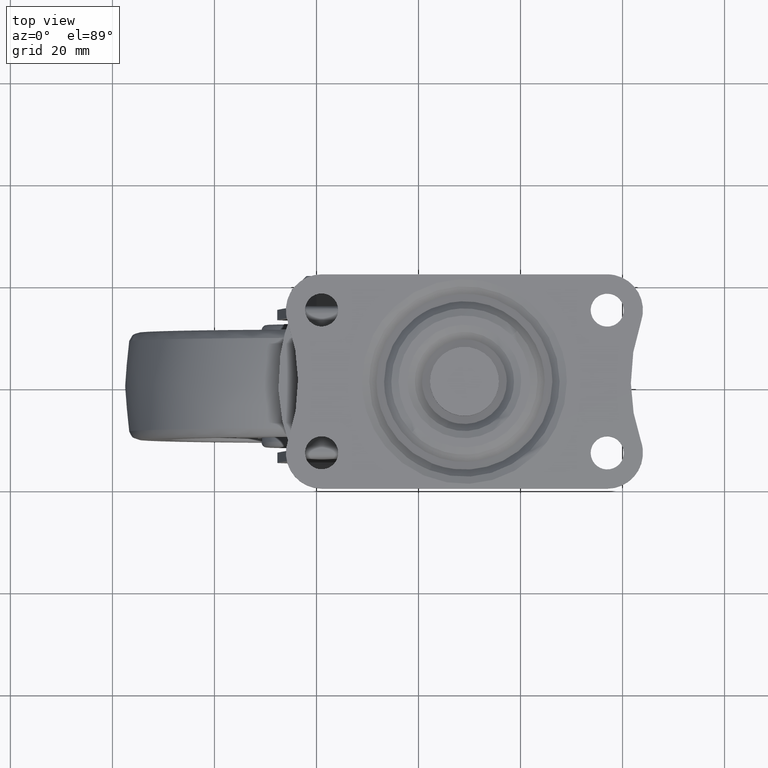
[diagram: clean part render]
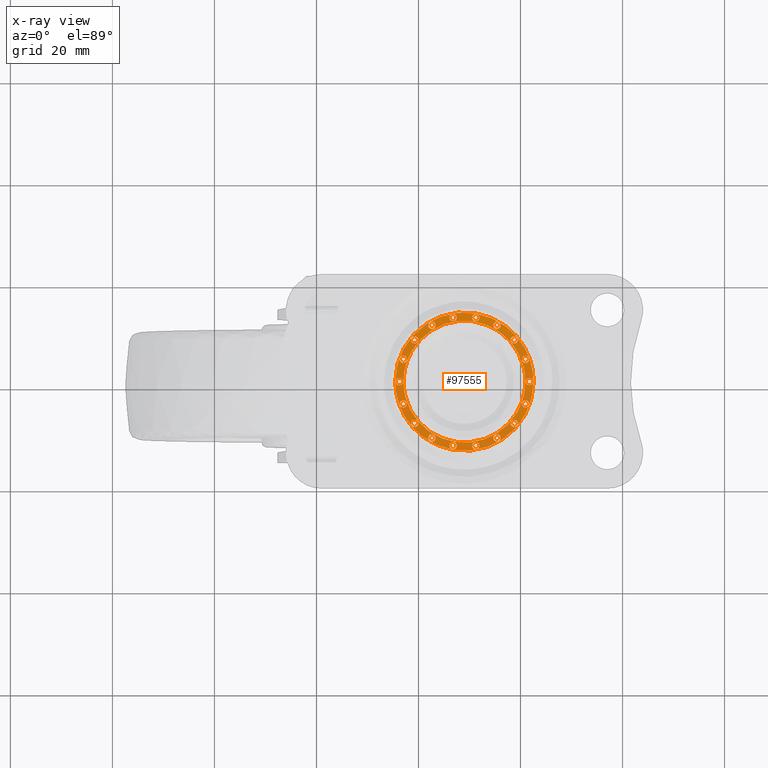
[diagram: x-ray — body ghosted, one internal face saturated and labeled with its STEP entity id]
A machine part, top view, then the same camera in x-ray: the body is ghosted and one INTERNAL B-rep face — a face not visible from any outside direction — is saturated and labeled: STEP entity #97555.
In plain terms, the highlighted face is a freeform B-spline surface patch.
Its self-contained STEP definition (entity closure, byte-faithful):
#95037=CARTESIAN_POINT('',(40.801666789984822,6.677061807021365,51.399996999999722));
#95038=VERTEX_POINT('',#95037);
#95044=CARTESIAN_POINT('',(15.440409541707901,1.421085E-014,51.399997000000013));
#95045=VERTEX_POINT('',#95044);
#95046=CARTESIAN_POINT('',(15.440409541707901,1.421085E-014,51.399997000000013));
#95047=CARTESIAN_POINT('',(15.440191095631519,1.066674131092846,51.399996999999978));
#95048=CARTESIAN_POINT('',(15.632936901854540,2.689724741644504,51.399997000000113));
#95049=CARTESIAN_POINT('',(16.259703119749890,4.733149949631047,51.399996999999942));
#95050=CARTESIAN_POINT('',(16.897265741888319,6.178065101641701,51.399997000000063));
#95051=CARTESIAN_POINT('',(17.857379642975690,7.822853805183417,51.399996999999772));
#95052=CARTESIAN_POINT('',(19.091519579668109,9.341758699236676,51.399997000001157));
#95053=CARTESIAN_POINT('',(20.650503859999141,10.735166515800010,51.399996999998017));
#95054=CARTESIAN_POINT('',(22.305063740785180,11.857592845231620,51.399997000000752));
#95055=CARTESIAN_POINT('',(24.160929445097970,12.724484920807820,51.399997000001200));
#95056=CARTESIAN_POINT('',(26.035413650159722,13.269703286132250,51.399996999998542));
#95057=CARTESIAN_POINT('',(27.779939392299660,13.541994054374021,51.399997000002159));
#95058=CARTESIAN_POINT('',(29.545534800172149,13.588912999474800,51.399996999998557));
#95059=CARTESIAN_POINT('',(31.532763462122318,13.375870625595130,51.399997000001122));
#95060=CARTESIAN_POINT('',(33.601849828163630,12.823880554381930,51.399997000000603));
#95061=CARTESIAN_POINT('',(35.505164752769581,11.950853027838839,51.399996999999694));
#95062=CARTESIAN_POINT('',(37.300400892157867,10.790870915419831,51.399997000000212));
#95063=CARTESIAN_POINT('',(39.143828648647741,9.149225178530541,51.399996999999900));
#95064=CARTESIAN_POINT('',(40.276621819809442,7.605571887990741,51.399997000000148));
#95065=CARTESIAN_POINT('',(40.801666789984822,6.677061807021365,51.399996999999722));
#95066=B_SPLINE_CURVE_WITH_KNOTS('',3,(#95046,#95047,#95048,#95049,#95050,#95051,#95052,#95053,#95054,#95055,#95056,#95057,#95058,#95059,#95060,#95061,#95062,#95063,#95064,#95065),.UNSPECIFIED.,.F.,.U.,(4,1,1,1,1,1,1,1,1,1,1,1,1,1,1,1,1,4),(0.000000061476193,3.199964786270343,4.869525243511273,6.399983864716909,7.930448935945119,10.573932560563961,12.243512239945540,14.191358743714069,16.556558020752700,18.365286025412480,20.034855125893088,21.843501670114790,23.652192149285138,26.017399690822280,28.243500063092789,29.913061425480571,32.417414236171027,35.617410792927778),.UNSPECIFIED.);
#95067=EDGE_CURVE('',#95045,#95038,#95066,.T.);
#95069=CARTESIAN_POINT('',(17.198333210015178,-6.677061807021340,51.399996999999722));
#95070=VERTEX_POINT('',#95069);
#95071=CARTESIAN_POINT('',(17.198333210015175,-6.677061807021339,51.399996999999715));
#95072=CARTESIAN_POINT('',(15.440409541707902,-3.569942242278361,51.399997000000006));
#95073=CARTESIAN_POINT('',(15.440409541707901,1.421085E-014,51.399997000000013));
#95081=(BOUNDED_CURVE()B_SPLINE_CURVE(2,(#95071,#95072,#95073),.UNSPECIFIED.,.F.,.U.)B_SPLINE_CURVE_WITH_KNOTS((3,3),(0.916070005742402,1.0),.UNSPECIFIED.)CURVE()GEOMETRIC_REPRESENTATION_ITEM()RATIONAL_B_SPLINE_CURVE((0.869362551592644,0.901669895307590,1.0))REPRESENTATION_ITEM(''));
#95082=EDGE_CURVE('',#95070,#95045,#95081,.T.);
#95949=CARTESIAN_POINT('',(42.559590458292099,1.421085E-014,51.399997000000013));
#95950=VERTEX_POINT('',#95949);
#95951=CARTESIAN_POINT('',(42.559590458292099,1.421085E-014,51.399997000000013));
#95952=CARTESIAN_POINT('',(42.559611399748917,-0.695624830939410,51.399996999999992));
#95953=CARTESIAN_POINT('',(42.441637849448348,-2.226056310331182,51.399996999999992));
#95954=CARTESIAN_POINT('',(41.942062280618309,-4.213482813955551,51.399997000000013));
#95955=CARTESIAN_POINT('',(41.119761728808221,-6.185689771642097,51.399997000000191));
#95956=CARTESIAN_POINT('',(40.140588128200783,-7.824075041646062,51.399996999999537));
#95957=CARTESIAN_POINT('',(38.894019801638407,-9.326434053619657,51.399997000000710));
#95958=CARTESIAN_POINT('',(37.500043974911371,-10.624941258797509,51.399996999999061));
#95959=CARTESIAN_POINT('',(35.779304827905953,-11.818192135256300,51.399997000000553));
#95960=CARTESIAN_POINT('',(33.586017888310927,-12.842754927847990,51.399997000000120));
#95961=CARTESIAN_POINT('',(31.329912908983960,-13.424357825992740,51.399996999999672));
#95962=CARTESIAN_POINT('',(29.383779730572929,-13.586147383103100,51.399997000000553));
#95963=CARTESIAN_POINT('',(27.481479228337669,-13.519622549381140,51.399996999998891));
#95964=CARTESIAN_POINT('',(25.554742115930249,-13.181916887506890,51.399997000001413));
#95965=CARTESIAN_POINT('',(23.189078662819210,-12.337664954075411,51.399996999999573));
#95966=CARTESIAN_POINT('',(21.093206635300231,-11.116701400944660,51.399997000000148));
#95967=CARTESIAN_POINT('',(18.919135614933840,-9.220081864351579,51.399996999999892));
#95968=CARTESIAN_POINT('',(17.768963056351708,-7.686374231120032,51.399997000000177));
#95969=CARTESIAN_POINT('',(17.198333210015178,-6.677061807021340,51.399996999999722));
#95970=B_SPLINE_CURVE_WITH_KNOTS('',3,(#95951,#95952,#95953,#95954,#95955,#95956,#95957,#95958,#95959,#95960,#95961,#95962,#95963,#95964,#95965,#95966,#95967,#95968,#95969),.UNSPECIFIED.,.F.,.U.,(4,1,1,1,1,1,1,1,1,1,1,1,1,1,1,1,4),(0.000000061449398,2.086891553402758,4.591272620048539,6.121711737106935,8.486954169449639,10.295671266995731,11.965251692847261,14.191358743708070,16.556558020749179,19.200047122765401,21.147891356333901,22.400016767008701,24.904354427558250,26.991327916865838,29.913061425480290,32.139154294591833,35.617410792927807),.UNSPECIFIED.);
#95971=EDGE_CURVE('',#95950,#95070,#95970,.T.);
#95973=CARTESIAN_POINT('',(40.801666789984807,6.677061807021365,51.399996999999715));
#95974=CARTESIAN_POINT('',(42.559590458292099,3.569942242278385,51.399997000000013));
#95975=CARTESIAN_POINT('',(42.559590458292099,1.421085E-014,51.399997000000013));
#95983=(BOUNDED_CURVE()B_SPLINE_CURVE(2,(#95973,#95974,#95975),.UNSPECIFIED.,.F.,.U.)B_SPLINE_CURVE_WITH_KNOTS((3,3),(0.416070005742402,0.500000000000000),.UNSPECIFIED.)CURVE()GEOMETRIC_REPRESENTATION_ITEM()RATIONAL_B_SPLINE_CURVE((0.869362551592644,0.901669895307590,1.0))REPRESENTATION_ITEM(''));
#95984=EDGE_CURVE('',#95038,#95950,#95983,.T.);
#96829=CARTESIAN_POINT('',(14.085806507486760,-14.913989186383970,51.399996999999999));
#96830=CARTESIAN_POINT('',(43.914194219906364,-14.913989186383970,51.399997000000013));
#96831=CARTESIAN_POINT('',(14.085806507486760,14.913989428848369,51.399996999999999));
#96832=CARTESIAN_POINT('',(43.914194219906364,14.913989428848369,51.399997000000013));
#96833=B_SPLINE_SURFACE_WITH_KNOTS('',1,1,((#96829,#96831),(#96830,#96832)),.UNSPECIFIED.,.F.,.F.,.U.,(2,2),(2,2),(0.0,29.828387712419609),(0.0,29.827978615232350),.UNSPECIFIED.);
#96834=ORIENTED_EDGE('',*,*,#95067,.T.);
#96835=ORIENTED_EDGE('',*,*,#95984,.T.);
#96836=ORIENTED_EDGE('',*,*,#95971,.T.);
#96837=ORIENTED_EDGE('',*,*,#95082,.T.);
#96838=EDGE_LOOP('',(#96834,#96835,#96836,#96837));
#96839=FACE_OUTER_BOUND('',#96838,.T.);
#96840=CARTESIAN_POINT('',(39.470897989631190,-8.195542023503339,51.399997000000013));
#96841=VERTEX_POINT('',#96840);
#96842=CARTESIAN_POINT('',(38.063235309902822,-8.195542023503339,51.399997000000013));
#96843=VERTEX_POINT('',#96842);
#96844=CARTESIAN_POINT('',(39.470897989631190,-8.195542023503339,51.399997000000013));
#96845=CARTESIAN_POINT('',(39.471261641869198,-8.068768328314732,51.399997000000042));
#96846=CARTESIAN_POINT('',(39.416543528444592,-7.873423264414080,51.399996999999964));
#96847=CARTESIAN_POINT('',(39.231863407690547,-7.648394162149799,51.399997000000063));
#96848=CARTESIAN_POINT('',(39.010343427931957,-7.515562950811843,51.399996999999892));
#96849=CARTESIAN_POINT('',(38.731628497098001,-7.474229938649943,51.399997000000070));
#96850=CARTESIAN_POINT('',(38.492518519479987,-7.534190840855818,51.399997000000013));
#96851=CARTESIAN_POINT('',(38.286600609702077,-7.664561497226582,51.399997000000013));
#96852=CARTESIAN_POINT('',(38.115249134608568,-7.873245005165631,51.399997000000063));
#96853=CARTESIAN_POINT('',(38.063024958345757,-8.080359136178217,51.399996999999999));
#96854=CARTESIAN_POINT('',(38.063235309902822,-8.195542023503339,51.399997000000013));
#96855=B_SPLINE_CURVE_WITH_KNOTS('',3,(#96844,#96845,#96846,#96847,#96848,#96849,#96850,#96851,#96852,#96853,#96854),.UNSPECIFIED.,.F.,.U.,(4,1,1,1,1,1,1,1,4),(0.000001115519103,0.380070436472574,0.587404640788333,0.863869485622461,1.140218117318292,1.416631841150278,1.589423343516492,1.865869483353192,2.211373161479922),.UNSPECIFIED.);
#96856=EDGE_CURVE('',#96841,#96843,#96855,.T.);
#96857=ORIENTED_EDGE('',*,*,#96856,.T.);
#96858=CARTESIAN_POINT('',(38.063235309902822,-8.195542023503339,51.399997000000013));
#96859=CARTESIAN_POINT('',(38.063130715786272,-8.287688189874437,51.399997000000077));
#96860=CARTESIAN_POINT('',(38.093081466727938,-8.437303813766096,51.399996999999992));
#96861=CARTESIAN_POINT('',(38.213154229282793,-8.649396555499617,51.399997000000113));
#96862=CARTESIAN_POINT('',(38.361015127555639,-8.783391072657999,51.399996999999701));
#96863=CARTESIAN_POINT('',(38.570282410105442,-8.882362521961479,51.399997000000461));
#96864=CARTESIAN_POINT('',(38.802483074737282,-8.916861358116716,51.399996999999658));
#96865=CARTESIAN_POINT('',(39.064436820193677,-8.851219231649740,51.399996999999907));
#96866=CARTESIAN_POINT('',(39.265063402406241,-8.709835737849058,51.399997000000191));
#96867=CARTESIAN_POINT('',(39.424633201799892,-8.494755728293750,51.399996999999964));
#96868=CARTESIAN_POINT('',(39.471127558408213,-8.310751029098141,51.399996999999807));
#96869=CARTESIAN_POINT('',(39.470897989631190,-8.195542023503339,51.399997000000013));
#96870=B_SPLINE_CURVE_WITH_KNOTS('',3,(#96858,#96859,#96860,#96861,#96862,#96863,#96864,#96865,#96866,#96867,#96868,#96869),.UNSPECIFIED.,.F.,.U.,(4,1,1,1,1,1,1,1,1,4),(0.000001115515150,0.276409256539158,0.449178239865354,0.725638893738757,0.863869485619984,1.140218117316305,1.416631841148695,1.658534513412290,1.865869483352465,2.211373161479848),.UNSPECIFIED.);
#96871=EDGE_CURVE('',#96843,#96841,#96870,.T.);
#96872=ORIENTED_EDGE('',*,*,#96871,.T.);
#96873=EDGE_LOOP('',(#96857,#96872));
#96874=FACE_BOUND('',#96873,.T.);
#96875=CARTESIAN_POINT('',(36.078831339864188,-11.041823898251559,51.399997000000013));
#96876=VERTEX_POINT('',#96875);
#96877=CARTESIAN_POINT('',(34.671168660135812,-11.041823898251559,51.399997000000013));
#96878=VERTEX_POINT('',#96877);
#96879=CARTESIAN_POINT('',(36.078831339864188,-11.041823898251559,51.399997000000013));
#96880=CARTESIAN_POINT('',(36.078934984375323,-10.949678311524989,51.399997000000027));
#96881=CARTESIAN_POINT('',(36.048989309127137,-10.800056287710840,51.399997000000063));
#96882=CARTESIAN_POINT('',(35.940315202744017,-10.608217317399280,51.399996999999928));
#96883=CARTESIAN_POINT('',(35.800370619182253,-10.468250827425580,51.399997000000262));
#96884=CARTESIAN_POINT('',(35.595031862712773,-10.358461785356459,51.399996999999807));
#96885=CARTESIAN_POINT('',(35.339559176304007,-10.320503844249171,51.399997000000269));
#96886=CARTESIAN_POINT('',(35.054847175957363,-10.391804870163300,51.399996999999850));
#96887=CARTESIAN_POINT('',(34.822200238639937,-10.573277602478990,51.399996999999829));
#96888=CARTESIAN_POINT('',(34.695051768719573,-10.811507898592801,51.399997000000504));
#96889=CARTESIAN_POINT('',(34.671149626095790,-10.972746356051530,51.399996999999438));
#96890=CARTESIAN_POINT('',(34.671168660135812,-11.041823898251559,51.399997000000013));
#96891=B_SPLINE_CURVE_WITH_KNOTS('',3,(#96879,#96880,#96881,#96882,#96883,#96884,#96885,#96886,#96887,#96888,#96889,#96890),.UNSPECIFIED.,.F.,.U.,(4,1,1,1,1,1,1,1,1,4),(0.000001115527058,0.276409256549175,0.449178239874216,0.656521680369833,0.863869485625972,1.140218117320504,1.416631841151640,1.727645533078365,2.004103335279134,2.211373161479858),.UNSPECIFIED.);
#96892=EDGE_CURVE('',#96876,#96878,#96891,.T.);
#96893=ORIENTED_EDGE('',*,*,#96892,.T.);
#96894=CARTESIAN_POINT('',(34.671168660135812,-11.041823898251559,51.399997000000013));
#96895=CARTESIAN_POINT('',(34.671066451868811,-11.133968147971020,51.399997000000049));
#96896=CARTESIAN_POINT('',(34.701013448792857,-11.283586497115460,51.399997000000020));
#96897=CARTESIAN_POINT('',(34.821088383897141,-11.495678381843360,51.399996999999992));
#96898=CARTESIAN_POINT('',(34.968948346070121,-11.629672704517780,51.399997000000091));
#96899=CARTESIAN_POINT('',(35.178214315631493,-11.728643409800110,51.399996999999772));
#96900=CARTESIAN_POINT('',(35.410427569592827,-11.763153912267770,51.399997000000319));
#96901=CARTESIAN_POINT('',(35.649550962864453,-11.703171319688710,51.399996999999971));
#96902=CARTESIAN_POINT('',(35.855465769423922,-11.572803261959439,51.399996999999949));
#96903=CARTESIAN_POINT('',(36.026817822391912,-11.364123038405330,51.399996999999999));
#96904=CARTESIAN_POINT('',(36.079041694491110,-11.157006052697231,51.399997000000283));
#96905=CARTESIAN_POINT('',(36.078831339864188,-11.041823898251559,51.399997000000013));
#96906=B_SPLINE_CURVE_WITH_KNOTS('',3,(#96894,#96895,#96896,#96897,#96898,#96899,#96900,#96901,#96902,#96903,#96904,#96905),.UNSPECIFIED.,.F.,.U.,(4,1,1,1,1,1,1,1,1,4),(0.000001115508567,0.276409256533305,0.449178239859990,0.725638893734111,0.863869485615617,1.140218117312655,1.416631841145908,1.589423343513071,1.865869483351327,2.211373161479987),.UNSPECIFIED.);
#96907=EDGE_CURVE('',#96878,#96876,#96906,.T.);
#96908=ORIENTED_EDGE('',*,*,#96907,.T.);
#96909=EDGE_LOOP('',(#96893,#96908));
#96910=FACE_BOUND('',#96909,.T.);
#96911=CARTESIAN_POINT('',(31.917845605117591,-12.556298850905639,51.399997000000013));
#96912=VERTEX_POINT('',#96911);
#96913=CARTESIAN_POINT('',(30.510182925389209,-12.556298850905639,51.399997000000013));
#96914=VERTEX_POINT('',#96913);
#96915=CARTESIAN_POINT('',(31.917845605117591,-12.556298850905639,51.399997000000013));
#96916=CARTESIAN_POINT('',(31.918208910277329,-12.429523540058799,51.399997000000013));
#96917=CARTESIAN_POINT('',(31.863491290766021,-12.234180936296010,51.399997000000027));
#96918=CARTESIAN_POINT('',(31.678811002068372,-12.009150710557790,51.399996999999928));
#96919=CARTESIAN_POINT('',(31.457291041678740,-11.876319818471250,51.399997000000120));
#96920=CARTESIAN_POINT('',(31.178575887402879,-11.834987206018051,51.399996999999892));
#96921=CARTESIAN_POINT('',(30.939467120676031,-11.894946174074990,51.399996999999942));
#96922=CARTESIAN_POINT('',(30.733547103336392,-12.025320575237490,51.399997000000212));
#96923=CARTESIAN_POINT('',(30.562197702065870,-12.233999386887479,51.399996999999750));
#96924=CARTESIAN_POINT('',(30.509971881993490,-12.441116664581170,51.399997000000369));
#96925=CARTESIAN_POINT('',(30.510182925389209,-12.556298850905639,51.399997000000013));
#96926=B_SPLINE_CURVE_WITH_KNOTS('',3,(#96915,#96916,#96917,#96918,#96919,#96920,#96921,#96922,#96923,#96924,#96925),.UNSPECIFIED.,.F.,.U.,(4,1,1,1,1,1,1,1,4),(0.000001115522673,0.380070436475348,0.587404640790817,0.863869485624495,1.140218117319920,1.416631841151496,1.589423343517452,1.865869483353692,2.211373161479865),.UNSPECIFIED.);
#96927=EDGE_CURVE('',#96912,#96914,#96926,.T.);
#96928=ORIENTED_EDGE('',*,*,#96927,.T.);
#96929=CARTESIAN_POINT('',(30.510182925389209,-12.556298850905639,51.399997000000013));
#96930=CARTESIAN_POINT('',(30.510080669327120,-12.648442358813631,51.399996999999964));
#96931=CARTESIAN_POINT('',(30.540028323038769,-12.798063786268230,51.399997000000113));
#96932=CARTESIAN_POINT('',(30.660096635658618,-13.010134253961150,51.399997000000113));
#96933=CARTESIAN_POINT('',(30.842759619463742,-13.175752447921980,51.399996999999672));
#96934=CARTESIAN_POINT('',(31.108054276564339,-13.270671348128809,51.399997000000411));
#96935=CARTESIAN_POINT('',(31.366025287671409,-13.257938040332300,51.399996999999850));
#96936=CARTESIAN_POINT('',(31.570346192109952,-13.173245362017621,51.399997000000063));
#96937=CARTESIAN_POINT('',(31.725866960694820,-13.051867438405710,51.399997000000013));
#96938=CARTESIAN_POINT('',(31.871594005297961,-12.855525389192559,51.399997000000013));
#96939=CARTESIAN_POINT('',(31.918071047533399,-12.671504077552010,51.399997000000099));
#96940=CARTESIAN_POINT('',(31.917845605117591,-12.556298850905639,51.399997000000013));
#96941=B_SPLINE_CURVE_WITH_KNOTS('',3,(#96929,#96930,#96931,#96932,#96933,#96934,#96935,#96936,#96937,#96938,#96939,#96940),.UNSPECIFIED.,.F.,.U.,(4,1,1,1,1,1,1,1,1,4),(0.000001115513253,0.276409256537170,0.449178239863347,0.725638893736761,1.002084161018843,1.278404587489601,1.485749841027260,1.658534513411473,1.865869483352000,2.211373161479923),.UNSPECIFIED.);
#96942=EDGE_CURVE('',#96914,#96912,#96941,.T.);
#96943=ORIENTED_EDGE('',*,*,#96942,.T.);
#96944=EDGE_LOOP('',(#96928,#96943));
#96945=FACE_BOUND('',#96944,.T.);
#96946=CARTESIAN_POINT('',(27.489817074610841,-12.556298850905639,51.399997000000013));
#96947=VERTEX_POINT('',#96946);
#96948=CARTESIAN_POINT('',(26.082154394882458,-12.556298850905639,51.399997000000013));
#96949=VERTEX_POINT('',#96948);
#96950=CARTESIAN_POINT('',(27.489817074610841,-12.556298850905639,51.399997000000013));
#96951=CARTESIAN_POINT('',(27.489919322632890,-12.464153616306250,51.399997000000020));
#96952=CARTESIAN_POINT('',(27.459972531570191,-12.314537077203481,51.399996999999971));
#96953=CARTESIAN_POINT('',(27.339897422468798,-12.102444241727991,51.399997000000120));
#96954=CARTESIAN_POINT('',(27.192037733385689,-11.968450500983311,51.399996999999694));
#96955=CARTESIAN_POINT('',(26.982771434965699,-11.869478932032330,51.399997000000582));
#96956=CARTESIAN_POINT('',(26.750557440355369,-11.834969472453441,51.399996999999431));
#96957=CARTESIAN_POINT('',(26.511437154589810,-11.894951314018540,51.399997000000283));
#96958=CARTESIAN_POINT('',(26.305519083316192,-12.025319716735879,51.399996999999772));
#96959=CARTESIAN_POINT('',(26.134166759771290,-12.233995501105371,51.399997000000482));
#96960=CARTESIAN_POINT('',(26.081945114225149,-12.441119541035000,51.399996999999381));
#96961=CARTESIAN_POINT('',(26.082154394882458,-12.556298850905639,51.399997000000013));
#96962=B_SPLINE_CURVE_WITH_KNOTS('',3,(#96950,#96951,#96952,#96953,#96954,#96955,#96956,#96957,#96958,#96959,#96960,#96961),.UNSPECIFIED.,.F.,.U.,(4,1,1,1,1,1,1,1,1,4),(0.000001115519945,0.276409256543534,0.449178239869391,0.725638893742258,0.863869485623179,1.140218117319020,1.416631841150883,1.589423343516953,1.865869483353426,2.211373161479872),.UNSPECIFIED.);
#96963=EDGE_CURVE('',#96947,#96949,#96962,.T.);
#96964=ORIENTED_EDGE('',*,*,#96963,.T.);
#96965=CARTESIAN_POINT('',(26.082154394882458,-12.556298850905639,51.399997000000013));
#96966=CARTESIAN_POINT('',(26.081791216545110,-12.683073251703130,51.399997000000013));
#96967=CARTESIAN_POINT('',(26.136508419630971,-12.878416802741350,51.399997000000070));
#96968=CARTESIAN_POINT('',(26.321188649458129,-13.103446540984921,51.399996999999964));
#96969=CARTESIAN_POINT('',(26.542709940908331,-13.236278900875231,51.399997000000042));
#96970=CARTESIAN_POINT('',(26.821411828595981,-13.277594478474789,51.399997000000013));
#96971=CARTESIAN_POINT('',(27.106154457133051,-13.206325765462321,51.399997000000027));
#96972=CARTESIAN_POINT('',(27.338775541484789,-13.024840092007221,51.399997000000020));
#96973=CARTESIAN_POINT('',(27.465942418875638,-12.786616149838880,51.399996999999992));
#96974=CARTESIAN_POINT('',(27.489829688129628,-12.625376463122929,51.399997000000013));
#96975=CARTESIAN_POINT('',(27.489817074610841,-12.556298850905639,51.399997000000013));
#96976=B_SPLINE_CURVE_WITH_KNOTS('',3,(#96965,#96966,#96967,#96968,#96969,#96970,#96971,#96972,#96973,#96974,#96975),.UNSPECIFIED.,.F.,.U.,(4,1,1,1,1,1,1,1,4),(0.000001115514692,0.380070436468644,0.587404640784826,0.863869485619525,1.140218117316010,1.416631841148616,1.727645533076595,2.004103335278403,2.211373161479920),.UNSPECIFIED.);
#96977=EDGE_CURVE('',#96949,#96947,#96976,.T.);
#96978=ORIENTED_EDGE('',*,*,#96977,.T.);
#96979=EDGE_LOOP('',(#96964,#96978));
#96980=FACE_BOUND('',#96979,.T.);
#96981=CARTESIAN_POINT('',(23.328831339864191,-11.041823898251600,51.399997000000013));
#96982=VERTEX_POINT('',#96981);
#96983=CARTESIAN_POINT('',(21.921168660135809,-11.041823898251600,51.399997000000013));
#96984=VERTEX_POINT('',#96983);
#96985=CARTESIAN_POINT('',(23.328831339864191,-11.041823898251600,51.399997000000013));
#96986=CARTESIAN_POINT('',(23.328925549101090,-10.949681056762770,51.399996999999978));
#96987=CARTESIAN_POINT('',(23.294424337149021,-10.777015171364029,51.399997000000063));
#96988=CARTESIAN_POINT('',(23.163120516380481,-10.569636517109400,51.399996999999921));
#96989=CARTESIAN_POINT('',(22.974110582854980,-10.414515225154490,51.399997000000120));
#96990=CARTESIAN_POINT('',(22.730951027805059,-10.327452830379491,51.399996999999907));
#96991=CARTESIAN_POINT('',(22.437779282991180,-10.341822794095849,51.399997000000148));
#96992=CARTESIAN_POINT('',(22.174290639792542,-10.474459384645611,51.399996999999907));
#96993=CARTESIAN_POINT('',(21.973187082785891,-10.719536160775400,51.399997000000020));
#96994=CARTESIAN_POINT('',(21.920958303007769,-10.926640985717700,51.399997000000312));
#96995=CARTESIAN_POINT('',(21.921168660135809,-11.041823898251600,51.399997000000013));
#96996=B_SPLINE_CURVE_WITH_KNOTS('',3,(#96985,#96986,#96987,#96988,#96989,#96990,#96991,#96992,#96993,#96994,#96995),.UNSPECIFIED.,.F.,.U.,(4,1,1,1,1,1,1,1,4),(0.000001115521527,0.276409256544538,0.518289645901089,0.725638893742572,1.002084161023635,1.278404587493265,1.589423343516770,1.865869483353337,2.211373161479880),.UNSPECIFIED.);
#96997=EDGE_CURVE('',#96982,#96984,#96996,.T.);
#96998=ORIENTED_EDGE('',*,*,#96997,.T.);
#96999=CARTESIAN_POINT('',(21.921168660135809,-11.041823898251600,51.399997000000013));
#97000=CARTESIAN_POINT('',(21.921075138652292,-11.133965962558561,51.399997000000063));
#97001=CARTESIAN_POINT('',(21.955572147434641,-11.306636536484120,51.399996999999964));
#97002=CARTESIAN_POINT('',(22.086886252465820,-11.514003880482759,51.399997000000042));
#97003=CARTESIAN_POINT('',(22.275883290436290,-11.669139573894970,51.399997000000013));
#97004=CARTESIAN_POINT('',(22.519051406857670,-11.756191966022170,51.399997000000042));
#97005=CARTESIAN_POINT('',(22.812219959042519,-11.741825293526340,51.399996999999971));
#97006=CARTESIAN_POINT('',(23.075709525051149,-11.609190086340201,51.399997000000099));
#97007=CARTESIAN_POINT('',(23.276812504636009,-11.364109327275891,51.399996999999892));
#97008=CARTESIAN_POINT('',(23.329041724766970,-11.157007677137941,51.399997000000091));
#97009=CARTESIAN_POINT('',(23.328831339864191,-11.041823898251600,51.399997000000013));
#97010=B_SPLINE_CURVE_WITH_KNOTS('',3,(#96999,#97000,#97001,#97002,#97003,#97004,#97005,#97006,#97007,#97008,#97009),.UNSPECIFIED.,.F.,.U.,(4,1,1,1,1,1,1,1,4),(0.000001115512758,0.276409256536962,0.518289645894637,0.725638893736992,1.002084161019051,1.278404587489751,1.589423343514497,1.865869483352086,2.211373161479921),.UNSPECIFIED.);
#97011=EDGE_CURVE('',#96984,#96982,#97010,.T.);
#97012=ORIENTED_EDGE('',*,*,#97011,.T.);
#97013=EDGE_LOOP('',(#96998,#97012));
#97014=FACE_BOUND('',#97013,.T.);
#97015=CARTESIAN_POINT('',(19.936764690097242,-8.195542023503391,51.399997000000013));
#97016=VERTEX_POINT('',#97015);
#97017=CARTESIAN_POINT('',(18.529102010368860,-8.195542023503391,51.399997000000013));
#97018=VERTEX_POINT('',#97017);
#97019=CARTESIAN_POINT('',(19.936764690097242,-8.195542023503391,51.399997000000013));
#97020=CARTESIAN_POINT('',(19.936866892662710,-8.103398570252084,51.399997000000042));
#97021=CARTESIAN_POINT('',(19.906920340551260,-7.953779847617023,51.399997000000020));
#97022=CARTESIAN_POINT('',(19.786844855022999,-7.741687466291017,51.399996999999992));
#97023=CARTESIAN_POINT('',(19.638985543589431,-7.607693728006329,51.399997000000127));
#97024=CARTESIAN_POINT('',(19.429717637323289,-7.508720981757466,51.399996999999942));
#97025=CARTESIAN_POINT('',(19.197518154593041,-7.474229268182861,51.399997000000027));
#97026=CARTESIAN_POINT('',(18.912760718180600,-7.545521868032422,51.399997000000141));
#97027=CARTESIAN_POINT('',(18.680144958001410,-7.726998329571341,51.399996999999807));
#97028=CARTESIAN_POINT('',(18.552976427569451,-7.965225127780306,51.399997000000383));
#97029=CARTESIAN_POINT('',(18.529089401402160,-8.126464408850366,51.399996999999587));
#97030=CARTESIAN_POINT('',(18.529102010368860,-8.195542023503391,51.399997000000013));
#97031=B_SPLINE_CURVE_WITH_KNOTS('',3,(#97019,#97020,#97021,#97022,#97023,#97024,#97025,#97026,#97027,#97028,#97029,#97030),.UNSPECIFIED.,.F.,.U.,(4,1,1,1,1,1,1,1,1,4),(0.000001115515687,0.276409256539382,0.449178239865373,0.725638893738479,0.863869485619551,1.140218117315777,1.416631841148315,1.727645533076335,2.004103335278283,2.211373161479956),.UNSPECIFIED.);
#97032=EDGE_CURVE('',#97016,#97018,#97031,.T.);
#97033=ORIENTED_EDGE('',*,*,#97032,.T.);
#97034=CARTESIAN_POINT('',(18.529102010368860,-8.195542023503391,51.399997000000013));
#97035=CARTESIAN_POINT('',(18.528940724210479,-8.299219717104634,51.399997000000063));
#97036=CARTESIAN_POINT('',(18.573153296749780,-8.494837706412415,51.399996999999949));
#97037=CARTESIAN_POINT('',(18.747949794057110,-8.730675557690255,51.399997000000020));
#97038=CARTESIAN_POINT('',(18.989634894979869,-8.875493551382608,51.399996999999942));
#97039=CARTESIAN_POINT('',(19.268386657438750,-8.916849350795909,51.399997000000234));
#97040=CARTESIAN_POINT('',(19.553083393599909,-8.845565125753680,51.399996999999892));
#97041=CARTESIAN_POINT('',(19.785730006757959,-8.664087066047403,51.399996999999928));
#97042=CARTESIAN_POINT('',(19.912888923054439,-8.425858192580799,51.399997000000333));
#97043=CARTESIAN_POINT('',(19.936777320385239,-8.264619860453136,51.399996999999587));
#97044=CARTESIAN_POINT('',(19.936764690097242,-8.195542023503391,51.399997000000013));
#97045=B_SPLINE_CURVE_WITH_KNOTS('',3,(#97034,#97035,#97036,#97037,#97038,#97039,#97040,#97041,#97042,#97043,#97044),.UNSPECIFIED.,.F.,.U.,(4,1,1,1,1,1,1,1,4),(0.000001115516493,0.310963974411779,0.587404640786138,0.863869485620680,1.140218117316938,1.416631841149379,1.727645533077127,2.004103335278603,2.211373161479882),.UNSPECIFIED.);
#97046=EDGE_CURVE('',#97018,#97016,#97045,.T.);
#97047=ORIENTED_EDGE('',*,*,#97046,.T.);
#97048=EDGE_LOOP('',(#97033,#97047));
#97049=FACE_BOUND('',#97048,.T.);
#97050=CARTESIAN_POINT('',(17.722750424843891,-4.360756827402300,51.399997000000013));
#97051=VERTEX_POINT('',#97050);
#97052=CARTESIAN_POINT('',(16.315087745115509,-4.360756827402300,51.399997000000013));
#97053=VERTEX_POINT('',#97052);
#97054=CARTESIAN_POINT('',(17.722750424843891,-4.360756827402300,51.399997000000013));
#97055=CARTESIAN_POINT('',(17.722852496152779,-4.268613143425552,51.399997000000013));
#97056=CARTESIAN_POINT('',(17.692906284762731,-4.118995301525215,51.399996999999999));
#97057=CARTESIAN_POINT('',(17.572830768255880,-3.906900965031475,51.399997000000091));
#97058=CARTESIAN_POINT('',(17.424968516712681,-3.772909734534568,51.399996999999829));
#97059=CARTESIAN_POINT('',(17.215707150633222,-3.673925735430574,51.399997000000248));
#97060=CARTESIAN_POINT('',(17.006738697122088,-3.642951385733776,51.399996999999807));
#97061=CARTESIAN_POINT('',(16.744039516211700,-3.695135701170282,51.399997000000013));
#97062=CARTESIAN_POINT('',(16.534760918648178,-3.827677862199466,51.399997000000063));
#97063=CARTESIAN_POINT('',(16.361347959932580,-4.061545048485216,51.399996999999942));
#97064=CARTESIAN_POINT('',(16.314863258798241,-4.245552366949867,51.399996999999772));
#97065=CARTESIAN_POINT('',(16.315087745115509,-4.360756827402300,51.399997000000013));
#97066=B_SPLINE_CURVE_WITH_KNOTS('',3,(#97054,#97055,#97056,#97057,#97058,#97059,#97060,#97061,#97062,#97063,#97064,#97065),.UNSPECIFIED.,.F.,.U.,(4,1,1,1,1,1,1,1,1,4),(0.000001115515638,0.276409256539432,0.449178239865515,0.725638893738814,0.863869485619977,1.140218117316315,1.347516064364294,1.658534513412350,1.865869483352563,2.211373161479950),.UNSPECIFIED.);
#97067=EDGE_CURVE('',#97051,#97053,#97066,.T.);
#97068=ORIENTED_EDGE('',*,*,#97067,.T.);
#97069=CARTESIAN_POINT('',(16.315087745115509,-4.360756827402300,51.399997000000013));
#97070=CARTESIAN_POINT('',(16.314926575058529,-4.464433279747755,51.399996999999971));
#97071=CARTESIAN_POINT('',(16.359139088809819,-4.660053043710407,51.399997000000077));
#97072=CARTESIAN_POINT('',(16.533934967652620,-4.895889950313798,51.399996999999992));
#97073=CARTESIAN_POINT('',(16.775621169372108,-5.040707842427619,51.399997000000013));
#97074=CARTESIAN_POINT('',(17.054372757230428,-5.082066390346019,51.399996999999857));
#97075=CARTESIAN_POINT('',(17.339069025028088,-5.010777107269492,51.399997000000162));
#97076=CARTESIAN_POINT('',(17.571715951531200,-4.829302905379545,51.399996999999722));
#97077=CARTESIAN_POINT('',(17.698874812227210,-4.591072961460143,51.399997000000504));
#97078=CARTESIAN_POINT('',(17.722762964026661,-4.429834600723786,51.399996999999360));
#97079=CARTESIAN_POINT('',(17.722750424843891,-4.360756827402300,51.399997000000013));
#97080=B_SPLINE_CURVE_WITH_KNOTS('',3,(#97069,#97070,#97071,#97072,#97073,#97074,#97075,#97076,#97077,#97078,#97079),.UNSPECIFIED.,.F.,.U.,(4,1,1,1,1,1,1,1,4),(0.000001115515960,0.310963974411334,0.587404640785693,0.863869485620183,1.140218117316345,1.416631841148719,1.727645533076587,2.004103335278384,2.211373161479887),.UNSPECIFIED.);
#97081=EDGE_CURVE('',#97053,#97051,#97080,.T.);
#97082=ORIENTED_EDGE('',*,*,#97081,.T.);
#97083=EDGE_LOOP('',(#97068,#97082));
#97084=FACE_BOUND('',#97083,.T.);
#97085=CARTESIAN_POINT('',(16.953831339864191,-1.421085E-014,51.399997000000013));
#97086=VERTEX_POINT('',#97085);
#97087=CARTESIAN_POINT('',(15.546168660135811,-1.421085E-014,51.399997000000013));
#97088=VERTEX_POINT('',#97087);
#97089=CARTESIAN_POINT('',(16.953831339864191,-1.421085E-014,51.399997000000013));
#97090=CARTESIAN_POINT('',(16.953935982984969,0.092146112922432,51.399997000000013));
#97091=CARTESIAN_POINT('',(16.923984155667860,0.241764795366740,51.399997000000063));
#97092=CARTESIAN_POINT('',(16.803918735582162,0.453835030532610,51.399996999999843));
#97093=CARTESIAN_POINT('',(16.621254478051171,0.619453531969322,51.399997000000361));
#97094=CARTESIAN_POINT('',(16.355959115428959,0.714373595464159,51.399996999999580));
#97095=CARTESIAN_POINT('',(16.086264093070291,0.701057214373314,51.399997000000162));
#97096=CARTESIAN_POINT('',(15.840495799372110,0.592162696843511,51.399997000000127));
#97097=CARTESIAN_POINT('',(15.666149161258900,0.417797567062947,51.399996999999701));
#97098=CARTESIAN_POINT('',(15.566679667133061,0.207257776776090,51.399997000000489));
#97099=CARTESIAN_POINT('',(15.546143869968191,0.069084575123300,51.399996999999289));
#97100=CARTESIAN_POINT('',(15.546168660135811,-1.421085E-014,51.399997000000013));
#97101=B_SPLINE_CURVE_WITH_KNOTS('',3,(#97089,#97090,#97091,#97092,#97093,#97094,#97095,#97096,#97097,#97098,#97099,#97100),.UNSPECIFIED.,.F.,.U.,(4,1,1,1,1,1,1,1,1,4),(0.000001115515930,0.276409256539660,0.449178239865677,0.725638893738862,1.002084161020551,1.278404587490935,1.520308930125232,1.796756762144602,2.004103335278457,2.211373161479951),.UNSPECIFIED.);
#97102=EDGE_CURVE('',#97086,#97088,#97101,.T.);
#97103=ORIENTED_EDGE('',*,*,#97102,.T.);
#97104=CARTESIAN_POINT('',(15.546168660135811,-1.421085E-014,51.399997000000013));
#97105=CARTESIAN_POINT('',(15.545997219347459,-0.103682113515788,51.399996999999992));
#97106=CARTESIAN_POINT('',(15.579866398931131,-0.253233294242005,51.399997000000013));
#97107=CARTESIAN_POINT('',(15.704781975051290,-0.461720707217476,51.399997000000099));
#97108=CARTESIAN_POINT('',(15.878746788443840,-0.619463766171360,51.399996999999871));
#97109=CARTESIAN_POINT('',(16.144046910018812,-0.714363718164823,51.399997000000099));
#97110=CARTESIAN_POINT('',(16.402007657912630,-0.701642671962147,51.399997000000063));
#97111=CARTESIAN_POINT('',(16.606332051382878,-0.616945872185013,51.399996999999942));
#97112=CARTESIAN_POINT('',(16.761852792797409,-0.495568581504671,51.399996999999964));
#97113=CARTESIAN_POINT('',(16.907580793131771,-0.299227422080696,51.399997000000177));
#97114=CARTESIAN_POINT('',(16.954055369958262,-0.115203572868343,51.399996999999694));
#97115=CARTESIAN_POINT('',(16.953831339864191,-1.421085E-014,51.399997000000013));
#97116=B_SPLINE_CURVE_WITH_KNOTS('',3,(#97104,#97105,#97106,#97107,#97108,#97109,#97110,#97111,#97112,#97113,#97114,#97115),.UNSPECIFIED.,.F.,.U.,(4,1,1,1,1,1,1,1,1,4),(0.000001115514001,0.310963974409819,0.449178239864572,0.725638893738180,1.002084161020208,1.278404587490798,1.485749841028261,1.658534513412270,1.865869483352508,2.211373161479890),.UNSPECIFIED.);
#97117=EDGE_CURVE('',#97088,#97086,#97116,.T.);
#97118=ORIENTED_EDGE('',*,*,#97117,.T.);
#97119=EDGE_LOOP('',(#97103,#97118));
#97120=FACE_BOUND('',#97119,.T.);
#97121=CARTESIAN_POINT('',(17.722750424843841,4.360756827402249,51.399997000000013));
#97122=VERTEX_POINT('',#97121);
#97123=CARTESIAN_POINT('',(16.315087745115459,4.360756827402249,51.399997000000013));
#97124=VERTEX_POINT('',#97123);
#97125=CARTESIAN_POINT('',(17.722750424843841,4.360756827402249,51.399997000000013));
#97126=CARTESIAN_POINT('',(17.722751463877469,4.429841083172546,51.399997000000013));
#97127=CARTESIAN_POINT('',(17.697233406429419,4.602656539439109,51.399996999999921));
#97128=CARTESIAN_POINT('',(17.575112666717182,4.818204516434880,51.399997000000234));
#97129=CARTESIAN_POINT('',(17.368021590134489,4.988061753573292,51.399996999999722));
#97130=CARTESIAN_POINT('',(17.124863341529569,5.075148144844148,51.399997000000283));
#97131=CARTESIAN_POINT('',(16.866920078445471,5.062395256682539,51.399996999999921));
#97132=CARTESIAN_POINT('',(16.662584850164489,4.977702353514906,51.399997000000027));
#97133=CARTESIAN_POINT('',(16.507066202458599,4.856325376719383,51.399996999999978));
#97134=CARTESIAN_POINT('',(16.361338432042380,4.659984312637521,51.399997000000198));
#97135=CARTESIAN_POINT('',(16.314863657723091,4.475960374095958,51.399996999999679));
#97136=CARTESIAN_POINT('',(16.315087745115459,4.360756827402249,51.399997000000013));
#97137=B_SPLINE_CURVE_WITH_KNOTS('',3,(#97125,#97126,#97127,#97128,#97129,#97130,#97131,#97132,#97133,#97134,#97135,#97136),.UNSPECIFIED.,.F.,.U.,(4,1,1,1,1,1,1,1,1,4),(0.000001115514652,0.207312091841149,0.518289645896045,0.725638893738289,1.002084161020298,1.278404587490923,1.485749841028355,1.658534513412361,1.865869483352581,2.211373161479950),.UNSPECIFIED.);
#97138=EDGE_CURVE('',#97122,#97124,#97137,.T.);
#97139=ORIENTED_EDGE('',*,*,#97138,.T.);
#97140=CARTESIAN_POINT('',(16.315087745115459,4.360756827402249,51.399997000000013));
#97141=CARTESIAN_POINT('',(16.314985910107580,4.268613753370976,51.399996999999971));
#97142=CARTESIAN_POINT('',(16.344931310067039,4.118993823625429,51.399997000000042));
#97143=CARTESIAN_POINT('',(16.465008498091080,3.906902576668517,51.399997000000013));
#97144=CARTESIAN_POINT('',(16.612866295392450,3.772907113538236,51.399996999999921));
#97145=CARTESIAN_POINT('',(16.822133823872161,3.673937581352301,51.399997000000148));
#97146=CARTESIAN_POINT('',(17.054346580519489,3.639426404494188,51.399996999999871));
#97147=CARTESIAN_POINT('',(17.293469662948141,3.699410321651495,51.399997000000063));
#97148=CARTESIAN_POINT('',(17.499385033251059,3.829775740895029,51.399997000000020));
#97149=CARTESIAN_POINT('',(17.670736183546310,4.038458896837263,51.399997000000013));
#97150=CARTESIAN_POINT('',(17.722959933822590,4.245575378747454,51.399996999999978));
#97151=CARTESIAN_POINT('',(17.722750424843841,4.360756827402249,51.399997000000013));
#97152=B_SPLINE_CURVE_WITH_KNOTS('',3,(#97140,#97141,#97142,#97143,#97144,#97145,#97146,#97147,#97148,#97149,#97150,#97151),.UNSPECIFIED.,.F.,.U.,(4,1,1,1,1,1,1,1,1,4),(0.000001115510708,0.276409256535255,0.449178239861773,0.725638893735669,0.863869485617148,1.140218117314205,1.416631841147269,1.589423343514107,1.865869483351890,2.211373161479954),.UNSPECIFIED.);
#97153=EDGE_CURVE('',#97124,#97122,#97152,.T.);
#97154=ORIENTED_EDGE('',*,*,#97153,.T.);
#97155=EDGE_LOOP('',(#97139,#97154));
#97156=FACE_BOUND('',#97155,.T.);
#97157=CARTESIAN_POINT('',(19.936764690097188,8.195542023503361,51.399997000000013));
#97158=VERTEX_POINT('',#97157);
#97159=CARTESIAN_POINT('',(18.529102010368810,8.195542023503361,51.399997000000013));
#97160=VERTEX_POINT('',#97159);
#97161=CARTESIAN_POINT('',(19.936764690097188,8.195542023503361,51.399997000000013));
#97162=CARTESIAN_POINT('',(19.936858275856810,8.287682738432228,51.399997000000049));
#97163=CARTESIAN_POINT('',(19.902360728858781,8.460356595159448,51.399997000000013));
#97164=CARTESIAN_POINT('',(19.771052113014971,8.667728791203242,51.399996999999928));
#97165=CARTESIAN_POINT('',(19.618017938304821,8.793256643156932,51.399997000000162));
#97166=CARTESIAN_POINT('',(19.429722280150880,8.882372940187462,51.399996999999843));
#97167=CARTESIAN_POINT('',(19.220744821031079,8.913367791570160,51.399997000000077));
#97168=CARTESIAN_POINT('',(19.003809827653381,8.870146218610140,51.399997000000013));
#97169=CARTESIAN_POINT('',(18.827608201292730,8.781453666041340,51.399997000000042));
#97170=CARTESIAN_POINT('',(18.663609252280750,8.632945544883047,51.399996999999857));
#97171=CARTESIAN_POINT('',(18.552960445216890,8.425869776802545,51.399997000000532));
#97172=CARTESIAN_POINT('',(18.529090971584491,8.264620210890159,51.399996999999331));
#97173=CARTESIAN_POINT('',(18.529102010368810,8.195542023503361,51.399997000000013));
#97174=B_SPLINE_CURVE_WITH_KNOTS('',3,(#97161,#97162,#97163,#97164,#97165,#97166,#97167,#97168,#97169,#97170,#97171,#97172,#97173),.UNSPECIFIED.,.F.,.U.,(4,1,1,1,1,1,1,1,1,1,4),(0.000001115515440,0.276409256539272,0.518289645896580,0.725638893738690,0.863869485619884,1.140218117316273,1.347516064364243,1.520308930125249,1.727645533076683,2.004103335278470,2.211373161479954),.UNSPECIFIED.);
#97175=EDGE_CURVE('',#97158,#97160,#97174,.T.);
#97176=ORIENTED_EDGE('',*,*,#97175,.T.);
#97177=CARTESIAN_POINT('',(18.529102010368810,8.195542023503361,51.399997000000013));
#97178=CARTESIAN_POINT('',(18.528740544750001,8.068768714477631,51.399997000000027));
#97179=CARTESIAN_POINT('',(18.583456755781569,7.873423303167132,51.399997000000042));
#97180=CARTESIAN_POINT('',(18.768136440473359,7.648394143262858,51.399996999999992));
#97181=CARTESIAN_POINT('',(18.989656703379229,7.515563099536762,51.399997000000042));
#97182=CARTESIAN_POINT('',(19.268371487376829,7.474229771794262,51.399997000000042));
#97183=CARTESIAN_POINT('',(19.507481438982332,7.534190966060857,51.399996999999878));
#97184=CARTESIAN_POINT('',(19.713399528221998,7.664561365718256,51.399997000000283));
#97185=CARTESIAN_POINT('',(19.884750313812692,7.873245262096404,51.399996999999722));
#97186=CARTESIAN_POINT('',(19.936975588153452,8.080358930966899,51.399997000000390));
#97187=CARTESIAN_POINT('',(19.936764690097188,8.195542023503361,51.399997000000013));
#97188=B_SPLINE_CURVE_WITH_KNOTS('',3,(#97177,#97178,#97179,#97180,#97181,#97182,#97183,#97184,#97185,#97186,#97187),.UNSPECIFIED.,.F.,.U.,(4,1,1,1,1,1,1,1,4),(0.000001115510942,0.380070436465581,0.587404640782130,0.863869485617360,1.140218117314219,1.416631841147209,1.589423343514087,1.865869483351871,2.211373161479957),.UNSPECIFIED.);
#97189=EDGE_CURVE('',#97160,#97158,#97188,.T.);
#97190=ORIENTED_EDGE('',*,*,#97189,.T.);
#97191=EDGE_LOOP('',(#97176,#97190));
#97192=FACE_BOUND('',#97191,.T.);
#97193=CARTESIAN_POINT('',(23.328831339864191,11.041823898251581,51.399997000000013));
#97194=VERTEX_POINT('',#97193);
#97195=CARTESIAN_POINT('',(21.921168660135809,11.041823898251581,51.399997000000013));
#97196=VERTEX_POINT('',#97195);
#97197=CARTESIAN_POINT('',(23.328831339864191,11.041823898251581,51.399997000000013));
#97198=CARTESIAN_POINT('',(23.328849456938340,11.110918458014110,51.399996999999999));
#97199=CARTESIAN_POINT('',(23.306637965686239,11.260628608014590,51.399996999999978));
#97200=CARTESIAN_POINT('',(23.196340771217269,11.479914455969711,51.399997000000162));
#97201=CARTESIAN_POINT('',(23.031042371709969,11.629676316201801,51.399996999999750));
#97202=CARTESIAN_POINT('',(22.821787041466891,11.728642952364821,51.399997000000319));
#97203=CARTESIAN_POINT('',(22.589571922730940,11.763154215352010,51.399996999999807));
#97204=CARTESIAN_POINT('',(22.350449538611020,11.703170410076959,51.399997000000099));
#97205=CARTESIAN_POINT('',(22.144534035223380,11.572805023279059,51.399996999999949));
#97206=CARTESIAN_POINT('',(21.973182901846780,11.364121783998550,51.399997000000177));
#97207=CARTESIAN_POINT('',(21.920959151009288,11.157005362206540,51.399996999999701));
#97208=CARTESIAN_POINT('',(21.921168660135809,11.041823898251581,51.399997000000013));
#97209=B_SPLINE_CURVE_WITH_KNOTS('',3,(#97197,#97198,#97199,#97200,#97201,#97202,#97203,#97204,#97205,#97206,#97207,#97208),.UNSPECIFIED.,.F.,.U.,(4,1,1,1,1,1,1,1,1,4),(0.000001115514257,0.207312091840798,0.449178239864548,0.725638893738046,0.863869485619308,1.140218117315893,1.416631841148521,1.589423343515178,1.865869483352503,2.211373161479959),.UNSPECIFIED.);
#97210=EDGE_CURVE('',#97194,#97196,#97209,.T.);
#97211=ORIENTED_EDGE('',*,*,#97210,.T.);
#97212=CARTESIAN_POINT('',(21.921168660135809,11.041823898251581,51.399997000000013));
#97213=CARTESIAN_POINT('',(21.921074397941471,10.949683057712820,51.399996999999999));
#97214=CARTESIAN_POINT('',(21.955575671678101,10.777014025159300,51.399996999999999));
#97215=CARTESIAN_POINT('',(22.086879487991631,10.569636883127670,51.399997000000063));
#97216=CARTESIAN_POINT('',(22.275889357742582,10.414515049587290,51.399996999999871));
#97217=CARTESIAN_POINT('',(22.519048913351241,10.327453007924341,51.399997000000120));
#97218=CARTESIAN_POINT('',(22.812220630779080,10.341823428263210,51.399997000000013));
#97219=CARTESIAN_POINT('',(23.075709582873451,10.474457707029501,51.399996999999708));
#97220=CARTESIAN_POINT('',(23.276812110249011,10.719537624995930,51.399997000000504));
#97221=CARTESIAN_POINT('',(23.329040893826551,10.926641546061401,51.399996999999431));
#97222=CARTESIAN_POINT('',(23.328831339864191,11.041823898251581,51.399997000000013));
#97223=B_SPLINE_CURVE_WITH_KNOTS('',3,(#97212,#97213,#97214,#97215,#97216,#97217,#97218,#97219,#97220,#97221,#97222),.UNSPECIFIED.,.F.,.U.,(4,1,1,1,1,1,1,1,4),(0.000001115518346,0.276409256541746,0.518289645898725,0.725638893740583,1.002084161022083,1.278404587492210,1.589423343516053,1.865869483352930,2.211373161479835),.UNSPECIFIED.);
#97224=EDGE_CURVE('',#97196,#97194,#97223,.T.);
#97225=ORIENTED_EDGE('',*,*,#97224,.T.);
#97226=EDGE_LOOP('',(#97211,#97225));
#97227=FACE_BOUND('',#97226,.T.);
#97228=CARTESIAN_POINT('',(27.489817074610791,12.556298850905639,51.399997000000013));
#97229=VERTEX_POINT('',#97228);
#97230=CARTESIAN_POINT('',(26.082154394882419,12.556298850905639,51.399997000000013));
#97231=VERTEX_POINT('',#97230);
#97232=CARTESIAN_POINT('',(27.489817074610791,12.556298850905639,51.399997000000013));
#97233=CARTESIAN_POINT('',(27.489988324589088,12.659981960377211,51.399997000000027));
#97234=CARTESIAN_POINT('',(27.456120525039960,12.809527508552430,51.399996999999971));
#97235=CARTESIAN_POINT('',(27.331196525413091,13.018045688476439,51.399997000000070));
#97236=CARTESIAN_POINT('',(27.192037027715539,13.144141910582350,51.399996999999900));
#97237=CARTESIAN_POINT('',(26.982771369477121,13.243119627499270,51.399997000000219));
#97238=CARTESIAN_POINT('',(26.750557405158471,13.277626990714110,51.399996999999821));
#97239=CARTESIAN_POINT('',(26.511438029932329,13.217649751041380,51.399997000000049));
#97240=CARTESIAN_POINT('',(26.305518783533589,13.087274152259591,51.399996999999964));
#97241=CARTESIAN_POINT('',(26.134167144866641,12.878605778549160,51.399997000000170));
#97242=CARTESIAN_POINT('',(26.081945065809190,12.671476856917710,51.399996999999722));
#97243=CARTESIAN_POINT('',(26.082154394882419,12.556298850905639,51.399997000000013));
#97244=B_SPLINE_CURVE_WITH_KNOTS('',3,(#97232,#97233,#97234,#97235,#97236,#97237,#97238,#97239,#97240,#97241,#97242,#97243),.UNSPECIFIED.,.F.,.U.,(4,1,1,1,1,1,1,1,1,4),(0.000001115519196,0.310963974414056,0.449178239868421,0.725638893741213,0.863869485622121,1.140218117317999,1.416631841150024,1.589423343516215,1.865869483353058,2.211373161479921),.UNSPECIFIED.);
#97245=EDGE_CURVE('',#97229,#97231,#97244,.T.);
#97246=ORIENTED_EDGE('',*,*,#97245,.T.);
#97247=CARTESIAN_POINT('',(26.082154394882419,12.556298850905639,51.399997000000013));
#97248=CARTESIAN_POINT('',(26.082071002929020,12.464166654532560,51.399997000000013));
#97249=CARTESIAN_POINT('',(26.121093389549529,12.268416325125949,51.399996999999878));
#97250=CARTESIAN_POINT('',(26.290879016680570,12.027183597338700,51.399997000000198));
#97251=CARTESIAN_POINT('',(26.542701424980770,11.876329878089161,51.399996999999843));
#97252=CARTESIAN_POINT('',(26.798193702686149,11.838479819179479,51.399997000000099));
#97253=CARTESIAN_POINT('',(27.015100557961841,11.881701549095100,51.399996999999807));
#97254=CARTESIAN_POINT('',(27.212091290720810,11.980769792981590,51.399997000000212));
#97255=CARTESIAN_POINT('',(27.369842156525259,12.138487384825989,51.399997000000283));
#97256=CARTESIAN_POINT('',(27.469295903014601,12.349045912373519,51.399996999999317));
#97257=CARTESIAN_POINT('',(27.489851507768829,12.487210469433579,51.399997000000909));
#97258=CARTESIAN_POINT('',(27.489817074610791,12.556298850905639,51.399997000000013));
#97259=B_SPLINE_CURVE_WITH_KNOTS('',3,(#97247,#97248,#97249,#97250,#97251,#97252,#97253,#97254,#97255,#97256,#97257,#97258),.UNSPECIFIED.,.F.,.U.,(4,1,1,1,1,1,1,1,1,4),(0.000001115509149,0.276409256533857,0.587404640780737,0.863869485616167,1.140218117313337,1.347516064361950,1.520308930123475,1.796756762143510,2.004103335277901,2.211373161479971),.UNSPECIFIED.);
#97260=EDGE_CURVE('',#97231,#97229,#97259,.T.);
#97261=ORIENTED_EDGE('',*,*,#97260,.T.);
#97262=EDGE_LOOP('',(#97246,#97261));
#97263=FACE_BOUND('',#97262,.T.);
#97264=CARTESIAN_POINT('',(31.917845605117542,12.556298850905639,51.399997000000013));
#97265=VERTEX_POINT('',#97264);
#97266=CARTESIAN_POINT('',(30.510182925389170,12.556298850905639,51.399997000000013));
#97267=VERTEX_POINT('',#97266);
#97268=CARTESIAN_POINT('',(31.917845605117542,12.556298850905639,51.399997000000013));
#97269=CARTESIAN_POINT('',(31.918184978375379,12.683038866252170,51.399996999999971));
#97270=CARTESIAN_POINT('',(31.857128785196348,12.901509774389790,51.399997000000113));
#97271=CARTESIAN_POINT('',(31.659945662674119,13.118918819964909,51.399996999999949));
#97272=CARTESIAN_POINT('',(31.434034170012371,13.239657984390419,51.399997000000091));
#97273=CARTESIAN_POINT('',(31.178582773361939,13.277639773941001,51.399997000000042));
#97274=CARTESIAN_POINT('',(30.939467624707941,13.217643248660160,51.399996999999779));
#97275=CARTESIAN_POINT('',(30.733546571770749,13.087277392373460,51.399997000000369));
#97276=CARTESIAN_POINT('',(30.562196197170199,12.878602760548430,51.399996999999637));
#97277=CARTESIAN_POINT('',(30.509973589358321,12.671478577225059,51.399997000000127));
#97278=CARTESIAN_POINT('',(30.510182925389170,12.556298850905639,51.399997000000013));
#97279=B_SPLINE_CURVE_WITH_KNOTS('',3,(#97268,#97269,#97270,#97271,#97272,#97273,#97274,#97275,#97276,#97277,#97278),.UNSPECIFIED.,.F.,.U.,(4,1,1,1,1,1,1,1,4),(0.000001115515848,0.380070436469643,0.656521680362736,0.863869485620279,1.140218117316540,1.416631841148941,1.589423343515406,1.865869483352570,2.211373161479916),.UNSPECIFIED.);
#97280=EDGE_CURVE('',#97265,#97267,#97279,.T.);
#97281=ORIENTED_EDGE('',*,*,#97280,.T.);
#97282=CARTESIAN_POINT('',(30.510182925389170,12.556298850905639,51.399997000000013));
#97283=CARTESIAN_POINT('',(30.510021770756310,12.452623366061360,51.399996999999949));
#97284=CARTESIAN_POINT('',(30.554233824606861,12.257001720982130,51.399997000000042));
#97285=CARTESIAN_POINT('',(30.729031473020520,12.021166143226701,51.399997000000063));
#97286=CARTESIAN_POINT('',(30.970715211949621,11.876347751650099,51.399996999999992));
#97287=CARTESIAN_POINT('',(31.249468334884899,11.834989433187941,51.399996999999907));
#97288=CARTESIAN_POINT('',(31.534163807663361,11.906278392996731,51.399997000000113));
#97289=CARTESIAN_POINT('',(31.766812045086208,12.087753550577739,51.399996999999978));
#97290=CARTESIAN_POINT('',(31.893969239713378,12.325982248114590,51.399996999999900));
#97291=CARTESIAN_POINT('',(31.917858912372900,12.487221033164809,51.399997000000148));
#97292=CARTESIAN_POINT('',(31.917845605117542,12.556298850905639,51.399997000000013));
#97293=B_SPLINE_CURVE_WITH_KNOTS('',3,(#97282,#97283,#97284,#97285,#97286,#97287,#97288,#97289,#97290,#97291,#97292),.UNSPECIFIED.,.F.,.U.,(4,1,1,1,1,1,1,1,4),(0.000001115509777,0.310963974405766,0.587404640780703,0.863869485615883,1.140218117312922,1.416631841146251,1.727645533075208,2.004103335277803,2.211373161479976),.UNSPECIFIED.);
#97294=EDGE_CURVE('',#97267,#97265,#97293,.T.);
#97295=ORIENTED_EDGE('',*,*,#97294,.T.);
#97296=EDGE_LOOP('',(#97281,#97295));
#97297=FACE_BOUND('',#97296,.T.);
#97298=CARTESIAN_POINT('',(36.078831339864188,11.041823898251600,51.399997000000013));
#97299=VERTEX_POINT('',#97298);
#97300=CARTESIAN_POINT('',(34.671168660135812,11.041823898251600,51.399997000000013));
#97301=VERTEX_POINT('',#97300);
#97302=CARTESIAN_POINT('',(36.078831339864188,11.041823898251600,51.399997000000013));
#97303=CARTESIAN_POINT('',(36.078993367698651,11.145500855957760,51.399997000000013));
#97304=CARTESIAN_POINT('',(36.034778079188527,11.341116187688559,51.399997000000063));
#97305=CARTESIAN_POINT('',(35.859988031958892,11.576968804181030,51.399996999999708));
#97306=CARTESIAN_POINT('',(35.658542530815488,11.697609856372640,51.399997000000340));
#97307=CARTESIAN_POINT('',(35.434003020080382,11.753832867940680,51.399996999999857));
#97308=CARTESIAN_POINT('',(35.211283361029828,11.742894688153280,51.399996999999843));
#97309=CARTESIAN_POINT('',(34.965492237593473,11.633985283172230,51.399997000000383));
#97310=CARTESIAN_POINT('',(34.791149260876637,11.459620826449010,51.399996999999601));
#97311=CARTESIAN_POINT('',(34.691679588506297,11.249081654403140,51.399997000000539));
#97312=CARTESIAN_POINT('',(34.671143910126311,11.110908549294770,51.399996999999317));
#97313=CARTESIAN_POINT('',(34.671168660135812,11.041823898251600,51.399997000000013));
#97314=B_SPLINE_CURVE_WITH_KNOTS('',3,(#97302,#97303,#97304,#97305,#97306,#97307,#97308,#97309,#97310,#97311,#97312,#97313),.UNSPECIFIED.,.F.,.U.,(4,1,1,1,1,1,1,1,1,4),(0.000001115514191,0.310963974410072,0.587404640784830,0.863869485619694,1.002084161020462,1.278404587490875,1.520308930125131,1.796756762144550,2.004103335278477,2.211373161479985),.UNSPECIFIED.);
#97315=EDGE_CURVE('',#97299,#97301,#97314,.T.);
#97316=ORIENTED_EDGE('',*,*,#97315,.T.);
#97317=CARTESIAN_POINT('',(34.671168660135812,11.041823898251600,51.399997000000013));
#97318=CARTESIAN_POINT('',(34.671074280553341,10.949681691683580,51.399997000000013));
#97319=CARTESIAN_POINT('',(34.705576067729737,10.777014253860500,51.399997000000113));
#97320=CARTESIAN_POINT('',(34.836873751141020,10.569627941945569,51.399996999999829));
#97321=CARTESIAN_POINT('',(34.989920730887512,10.444116652867510,51.399997000000191));
#97322=CARTESIAN_POINT('',(35.178210126736907,10.355000861932149,51.399996999999971));
#97323=CARTESIAN_POINT('',(35.410414963990810,10.320508528740310,51.399996999999850));
#97324=CARTESIAN_POINT('',(35.695173342551882,10.391805034992201,51.399997000000347));
#97325=CARTESIAN_POINT('',(35.927788477056282,10.573280908899950,51.399996999999388));
#97326=CARTESIAN_POINT('',(36.054956238022683,10.811504637941241,51.399997000001022));
#97327=CARTESIAN_POINT('',(36.078844759625049,10.972748857048479,51.399996999998727));
#97328=CARTESIAN_POINT('',(36.078831339864188,11.041823898251600,51.399997000000013));
#97329=B_SPLINE_CURVE_WITH_KNOTS('',3,(#97317,#97318,#97319,#97320,#97321,#97322,#97323,#97324,#97325,#97326,#97327,#97328),.UNSPECIFIED.,.F.,.U.,(4,1,1,1,1,1,1,1,1,4),(0.000001115504546,0.276409256530069,0.518289645888812,0.725638893732080,0.863869485613961,1.140218117311653,1.416631841145451,1.727645533074825,2.004103335277709,2.211373161479985),.UNSPECIFIED.);
#97330=EDGE_CURVE('',#97301,#97299,#97329,.T.);
#97331=ORIENTED_EDGE('',*,*,#97330,.T.);
#97332=EDGE_LOOP('',(#97316,#97331));
#97333=FACE_BOUND('',#97332,.T.);
#97334=CARTESIAN_POINT('',(39.470897989631133,8.195542023503391,51.399997000000013));
#97335=VERTEX_POINT('',#97334);
#97336=CARTESIAN_POINT('',(38.063235309902758,8.195542023503391,51.399997000000013));
#97337=VERTEX_POINT('',#97336);
#97338=CARTESIAN_POINT('',(39.470897989631133,8.195542023503391,51.399997000000013));
#97339=CARTESIAN_POINT('',(39.471259822618357,8.322317161779743,51.399997000000063));
#97340=CARTESIAN_POINT('',(39.416542865758998,8.517660715805768,51.399996999999921));
#97341=CARTESIAN_POINT('',(39.231863716276173,8.742689591197017,51.399997000000141));
#97342=CARTESIAN_POINT('',(39.010343176616900,8.875521692000275,51.399996999999793));
#97343=CARTESIAN_POINT('',(38.731628821384092,8.916852146989447,51.399997000000262));
#97344=CARTESIAN_POINT('',(38.492518399324233,8.856897535517748,51.399996999999701));
#97345=CARTESIAN_POINT('',(38.286601053995703,8.726517232031331,51.399997000000340));
#97346=CARTESIAN_POINT('',(38.115248563895904,8.517844448473360,51.399996999999779));
#97347=CARTESIAN_POINT('',(38.063024786801783,8.310723164987003,51.399996999999857));
#97348=CARTESIAN_POINT('',(38.063235309902758,8.195542023503391,51.399997000000013));
#97349=B_SPLINE_CURVE_WITH_KNOTS('',3,(#97338,#97339,#97340,#97341,#97342,#97343,#97344,#97345,#97346,#97347,#97348),.UNSPECIFIED.,.F.,.U.,(4,1,1,1,1,1,1,1,4),(0.000001115510282,0.380070436465131,0.587404640781764,0.863869485617126,1.140218117314131,1.416631841147299,1.589423343514156,1.865869483351908,2.211373161479992),.UNSPECIFIED.);
#97350=EDGE_CURVE('',#97335,#97337,#97349,.T.);
#97351=ORIENTED_EDGE('',*,*,#97350,.T.);
#97352=CARTESIAN_POINT('',(38.063235309902758,8.195542023503391,51.399997000000013));
#97353=CARTESIAN_POINT('',(38.062872377134497,8.068767051569322,51.399997000000042));
#97354=CARTESIAN_POINT('',(38.117588444905962,7.873423054150016,51.399997000000020));
#97355=CARTESIAN_POINT('',(38.302272356109377,7.648396053919127,51.399996999999921));
#97356=CARTESIAN_POINT('',(38.523786499651607,7.515550761525980,51.399997000000212));
#97357=CARTESIAN_POINT('',(38.779256181453839,7.477739166411529,51.399996999999800));
#97358=CARTESIAN_POINT('',(39.041907551604822,7.529937606426294,51.399996999999942));
#97359=CARTESIAN_POINT('',(39.271269323231230,7.675042112423964,51.399997000000063));
#97360=CARTESIAN_POINT('',(39.434200194075267,7.919226649148389,51.399996999999907));
#97361=CARTESIAN_POINT('',(39.470992412227552,8.103407662437670,51.399997000000013));
#97362=CARTESIAN_POINT('',(39.470897989631133,8.195542023503391,51.399997000000013));
#97363=B_SPLINE_CURVE_WITH_KNOTS('',3,(#97352,#97353,#97354,#97355,#97356,#97357,#97358,#97359,#97360,#97361,#97362),.UNSPECIFIED.,.F.,.U.,(4,1,1,1,1,1,1,1,4),(0.000001115516091,0.380070436469769,0.587404640785715,0.863869485620324,1.140218117316503,1.347516064364279,1.658534513412349,1.934985103941183,2.211373161479848),.UNSPECIFIED.);
#97364=EDGE_CURVE('',#97337,#97335,#97363,.T.);
#97365=ORIENTED_EDGE('',*,*,#97364,.T.);
#97366=EDGE_LOOP('',(#97351,#97365));
#97367=FACE_BOUND('',#97366,.T.);
#97368=CARTESIAN_POINT('',(41.684912254884537,4.360756827402289,51.399997000000013));
#97369=VERTEX_POINT('',#97368);
#97370=CARTESIAN_POINT('',(40.277249575156169,4.360756827402289,51.399997000000013));
#97371=VERTEX_POINT('',#97370);
#97372=CARTESIAN_POINT('',(41.684912254884537,4.360756827402289,51.399997000000013));
#97373=CARTESIAN_POINT('',(41.684912532834943,4.429840142977260,51.399996999999992));
#97374=CARTESIAN_POINT('',(41.659399045937448,4.602661468288193,51.399997000000042));
#97375=CARTESIAN_POINT('',(41.537268532463003,4.818195826786576,51.399997000000063));
#97376=CARTESIAN_POINT('',(41.330190578592720,4.988071956965176,51.399996999999978));
#97377=CARTESIAN_POINT('',(41.087025440483892,5.075122085969515,51.399997000000027));
#97378=CARTESIAN_POINT('',(40.793861898805773,5.060760473240129,51.399996999999992));
#97379=CARTESIAN_POINT('',(40.530372395171170,4.928118696780293,51.399996999999978));
#97380=CARTESIAN_POINT('',(40.329266137393446,4.683047641002398,51.399997000000099));
#97381=CARTESIAN_POINT('',(40.277040731745750,4.475937747609067,51.399996999999779));
#97382=CARTESIAN_POINT('',(40.277249575156169,4.360756827402289,51.399997000000013));
#97383=B_SPLINE_CURVE_WITH_KNOTS('',3,(#97372,#97373,#97374,#97375,#97376,#97377,#97378,#97379,#97380,#97381,#97382),.UNSPECIFIED.,.F.,.U.,(4,1,1,1,1,1,1,1,4),(0.000001115511636,0.207312091838521,0.518289645893853,0.725638893736263,1.002084161018417,1.278404587489135,1.589423343514002,1.865869483351868,2.211373161479997),.UNSPECIFIED.);
#97384=EDGE_CURVE('',#97369,#97371,#97383,.T.);
#97385=ORIENTED_EDGE('',*,*,#97384,.T.);
#97386=CARTESIAN_POINT('',(40.277249575156169,4.360756827402289,51.399997000000013));
#97387=CARTESIAN_POINT('',(40.277147740203048,4.268613753391256,51.399997000000049));
#97388=CARTESIAN_POINT('',(40.307093143961353,4.118993813611525,51.399996999999907));
#97389=CARTESIAN_POINT('',(40.427170301519567,3.906902643698069,51.399996999999978));
#97390=CARTESIAN_POINT('',(40.575028216400732,3.772906883734820,51.399997000000269));
#97391=CARTESIAN_POINT('',(40.784296880540147,3.673936305688546,51.399996999999551));
#97392=CARTESIAN_POINT('',(41.016499925820881,3.639436180052430,51.399997000000511));
#97393=CARTESIAN_POINT('',(41.278441505043403,3.705084259919762,51.399996999999630));
#97394=CARTESIAN_POINT('',(41.479088153269387,3.846456855116811,51.399997000000383));
#97395=CARTESIAN_POINT('',(41.638638197435696,4.061547964573976,51.399996999999722));
#97396=CARTESIAN_POINT('',(41.685144617698882,4.245546678308544,51.399997000000141));
#97397=CARTESIAN_POINT('',(41.684912254884537,4.360756827402289,51.399997000000013));
#97398=B_SPLINE_CURVE_WITH_KNOTS('',3,(#97386,#97387,#97388,#97389,#97390,#97391,#97392,#97393,#97394,#97395,#97396,#97397),.UNSPECIFIED.,.F.,.U.,(4,1,1,1,1,1,1,1,1,4),(0.000001115505821,0.276409256531094,0.449178239858017,0.725638893732626,0.863869485614382,1.140218117311834,1.416631841145390,1.658534513409996,1.865869483351092,2.211373161479999),.UNSPECIFIED.);
#97399=EDGE_CURVE('',#97371,#97369,#97398,.T.);
#97400=ORIENTED_EDGE('',*,*,#97399,.T.);
#97401=EDGE_LOOP('',(#97385,#97400));
#97402=FACE_BOUND('',#97401,.T.);
#97403=CARTESIAN_POINT('',(42.453831339864202,1.421085E-014,51.399997000000013));
#97404=VERTEX_POINT('',#97403);
#97405=CARTESIAN_POINT('',(41.046168660135812,1.421085E-014,51.399997000000013));
#97406=VERTEX_POINT('',#97405);
#97407=CARTESIAN_POINT('',(42.453831339864202,1.421085E-014,51.399997000000013));
#97408=CARTESIAN_POINT('',(42.453926300159537,0.092142179804421,51.399997000000042));
#97409=CARTESIAN_POINT('',(42.419427593597497,0.264813381098872,51.399997000000013));
#97410=CARTESIAN_POINT('',(42.288113726090756,0.472179901496488,51.399996999999964));
#97411=CARTESIAN_POINT('',(42.099116703783302,0.627315196907459,51.399997000000091));
#97412=CARTESIAN_POINT('',(41.855940687626692,0.714383495428215,51.399996999999892));
#97413=CARTESIAN_POINT('',(41.621472290397762,0.702786738216203,51.399997000000070));
#97414=CARTESIAN_POINT('',(41.392616143433919,0.620964464182603,51.399997000000013));
#97415=CARTESIAN_POINT('',(41.197215711811069,0.468547319835519,51.399996999999857));
#97416=CARTESIAN_POINT('',(41.070042374266421,0.230316161902155,51.399997000000347));
#97417=CARTESIAN_POINT('',(41.046156064513653,0.069077668649544,51.399996999999573));
#97418=CARTESIAN_POINT('',(41.046168660135812,1.421085E-014,51.399997000000013));
#97419=B_SPLINE_CURVE_WITH_KNOTS('',3,(#97407,#97408,#97409,#97410,#97411,#97412,#97413,#97414,#97415,#97416,#97417,#97418),.UNSPECIFIED.,.F.,.U.,(4,1,1,1,1,1,1,1,1,4),(0.000001115513081,0.276409256537190,0.518289645894711,0.725638893736897,1.002084161018889,1.278404587489436,1.416631841147310,1.727645533075695,2.004103335278052,2.211373161480009),.UNSPECIFIED.);
#97420=EDGE_CURVE('',#97404,#97406,#97419,.T.);
#97421=ORIENTED_EDGE('',*,*,#97420,.T.);
#97422=CARTESIAN_POINT('',(41.046168660135812,1.421085E-014,51.399997000000013));
#97423=CARTESIAN_POINT('',(41.046066467151057,-0.092143465562370,51.399996999999971));
#97424=CARTESIAN_POINT('',(41.076013002278387,-0.241762165347016,51.399997000000077));
#97425=CARTESIAN_POINT('',(41.196088420148151,-0.453854468398942,51.399996999999892));
#97426=CARTESIAN_POINT('',(41.343947985796483,-0.587848492722454,51.399997000000127));
#97427=CARTESIAN_POINT('',(41.553214343611657,-0.686819602292731,51.399997000000070));
#97428=CARTESIAN_POINT('',(41.785427776491673,-0.721330248792788,51.399996999999793));
#97429=CARTESIAN_POINT('',(42.024550726222408,-0.661346479051938,51.399997000000113));
#97430=CARTESIAN_POINT('',(42.230465795144760,-0.530981318473420,51.399996999999907));
#97431=CARTESIAN_POINT('',(42.401816952669058,-0.322296784796028,51.399997000000120));
#97432=CARTESIAN_POINT('',(42.454042241645148,-0.115183084551282,51.399996999999779));
#97433=CARTESIAN_POINT('',(42.453831339864202,1.421085E-014,51.399997000000013));
#97434=B_SPLINE_CURVE_WITH_KNOTS('',3,(#97422,#97423,#97424,#97425,#97426,#97427,#97428,#97429,#97430,#97431,#97432,#97433),.UNSPECIFIED.,.F.,.U.,(4,1,1,1,1,1,1,1,1,4),(0.000001115512899,0.276409256537126,0.449178239863474,0.725638893737254,0.863869485618667,1.140218117315456,1.416631841148512,1.589423343515212,1.865869483352484,2.211373161479847),.UNSPECIFIED.);
#97435=EDGE_CURVE('',#97406,#97404,#97434,.T.);
#97436=ORIENTED_EDGE('',*,*,#97435,.T.);
#97437=EDGE_LOOP('',(#97421,#97436));
#97438=FACE_BOUND('',#97437,.T.);
#97439=CARTESIAN_POINT('',(41.684912254884537,-4.360756827402240,51.399997000000013));
#97440=VERTEX_POINT('',#97439);
#97441=CARTESIAN_POINT('',(40.277249575156169,-4.360756827402240,51.399997000000013));
#97442=VERTEX_POINT('',#97441);
#97443=CARTESIAN_POINT('',(41.684912254884537,-4.360756827402240,51.399997000000013));
#97444=CARTESIAN_POINT('',(41.685074542112282,-4.257079909957747,51.399997000000049));
#97445=CARTESIAN_POINT('',(41.640858482649300,-4.061464666551621,51.399997000000013));
#97446=CARTESIAN_POINT('',(41.466069715556102,-3.825611976590701,51.399996999999942));
#97447=CARTESIAN_POINT('',(41.264623115777873,-3.704971179716689,51.399997000000063));
#97448=CARTESIAN_POINT('',(41.040084138922509,-3.648747824514841,51.399997000000049));
#97449=CARTESIAN_POINT('',(40.817364037306341,-3.659685720742012,51.399996999999829));
#97450=CARTESIAN_POINT('',(40.571573420890729,-3.768595603409231,51.399997000000397));
#97451=CARTESIAN_POINT('',(40.397230072549917,-3.942960499189042,51.399996999999409));
#97452=CARTESIAN_POINT('',(40.297761265755192,-4.153496679054269,51.399997000001022));
#97453=CARTESIAN_POINT('',(40.277223936851321,-4.291675012827188,51.399996999998642));
#97454=CARTESIAN_POINT('',(40.277249575156169,-4.360756827402240,51.399997000000013));
#97455=B_SPLINE_CURVE_WITH_KNOTS('',3,(#97443,#97444,#97445,#97446,#97447,#97448,#97449,#97450,#97451,#97452,#97453,#97454),.UNSPECIFIED.,.F.,.U.,(4,1,1,1,1,1,1,1,1,4),(0.000001115522406,0.310963974417180,0.587404640790909,0.863869485624780,1.002084161025123,1.278404587494757,1.520308930128179,1.796756762146307,2.004103335279251,2.211373161479847),.UNSPECIFIED.);
#97456=EDGE_CURVE('',#97440,#97442,#97455,.T.);
#97457=ORIENTED_EDGE('',*,*,#97456,.T.);
#97458=CARTESIAN_POINT('',(40.277249575156169,-4.360756827402240,51.399997000000013));
#97459=CARTESIAN_POINT('',(40.277147503922947,-4.452900511295416,51.399996999999971));
#97460=CARTESIAN_POINT('',(40.307093604155433,-4.602518404971885,51.399997000000063));
#97461=CARTESIAN_POINT('',(40.427169977336909,-4.814612343513566,51.399996999999843));
#97462=CARTESIAN_POINT('',(40.575028926453683,-4.948605107382313,51.399997000000383));
#97463=CARTESIAN_POINT('',(40.784295477526747,-5.047576909678561,51.399996999999502));
#97464=CARTESIAN_POINT('',(41.016508164149172,-5.082085005331551,51.399997000000432));
#97465=CARTESIAN_POINT('',(41.255632022612772,-5.022107650014727,51.399996999999857));
#97466=CARTESIAN_POINT('',(41.461545784281149,-4.891732733831505,51.399997000000070));
#97467=CARTESIAN_POINT('',(41.632899476879182,-4.683059227484291,51.399996999999978));
#97468=CARTESIAN_POINT('',(41.685122570438878,-4.475937911826206,51.399996999999850));
#97469=CARTESIAN_POINT('',(41.684912254884537,-4.360756827402240,51.399997000000013));
#97470=B_SPLINE_CURVE_WITH_KNOTS('',3,(#97458,#97459,#97460,#97461,#97462,#97463,#97464,#97465,#97466,#97467,#97468,#97469),.UNSPECIFIED.,.F.,.U.,(4,1,1,1,1,1,1,1,1,4),(0.000001115512746,0.276409256537189,0.449178239863650,0.725638893737458,0.863869485618814,1.140218117315541,1.416631841148349,1.589423343515055,1.865869483352425,2.211373161479843),.UNSPECIFIED.);
#97471=EDGE_CURVE('',#97442,#97440,#97470,.T.);
#97472=ORIENTED_EDGE('',*,*,#97471,.T.);
#97473=EDGE_LOOP('',(#97457,#97472));
#97474=FACE_BOUND('',#97473,.T.);
#97475=CARTESIAN_POINT('',(17.059590458292082,1.421085E-014,51.399997000000013));
#97476=VERTEX_POINT('',#97475);
#97477=CARTESIAN_POINT('',(18.711794951250589,6.060215911879539,51.399997000000063));
#97478=VERTEX_POINT('',#97477);
#97479=CARTESIAN_POINT('',(17.059590458292082,1.421085E-014,51.399997000000013));
#97480=CARTESIAN_POINT('',(17.059590458292082,3.255329278599355,51.399997000000020));
#97481=CARTESIAN_POINT('',(18.711794951250628,6.060215911879512,51.399997000000013));
#97489=(BOUNDED_CURVE()B_SPLINE_CURVE(2,(#97479,#97480,#97481),.UNSPECIFIED.,.F.,.U.)B_SPLINE_CURVE_WITH_KNOTS((3,3),(0.0,0.086609155410022),.UNSPECIFIED.)CURVE()GEOMETRIC_REPRESENTATION_ITEM()RATIONAL_B_SPLINE_CURVE((1.0,0.898531062772976,0.867367237174633))REPRESENTATION_ITEM(''));
#97490=EDGE_CURVE('',#97476,#97478,#97489,.T.);
#97491=ORIENTED_EDGE('',*,*,#97490,.F.);
#97492=CARTESIAN_POINT('',(39.288205048749418,-6.060215911879515,51.399997000000063));
#97493=VERTEX_POINT('',#97492);
#97494=CARTESIAN_POINT('',(39.288205048749418,-6.060215911879515,51.399997000000063));
#97495=CARTESIAN_POINT('',(38.835387826274932,-6.829314125376837,51.399997000000027));
#97496=CARTESIAN_POINT('',(37.927740696217917,-8.036614816703452,51.399996999999992));
#97497=CARTESIAN_POINT('',(36.392319640030443,-9.432352068873898,51.399997000000020));
#97498=CARTESIAN_POINT('',(35.006720129712342,-10.360082955159770,51.399997000000013));
#97499=CARTESIAN_POINT('',(33.511713493482787,-11.096131591531430,51.399997000000013));
#97500=CARTESIAN_POINT('',(31.928209435447510,-11.620733425972530,51.399997000000020));
#97501=CARTESIAN_POINT('',(30.004877916847590,-11.955086231224859,51.399997000000077));
#97502=CARTESIAN_POINT('',(27.803987809614359,-11.963894511022090,51.399997000000340));
#97503=CARTESIAN_POINT('',(25.564721143856929,-11.510104828024049,51.399996999998322));
#97504=CARTESIAN_POINT('',(23.530549775825001,-10.677536232765860,51.399997000001527));
#97505=CARTESIAN_POINT('',(22.078521184801680,-9.773914218003213,51.399996999998542));
#97506=CARTESIAN_POINT('',(20.730763574975231,-8.663525487564170,51.399997000002770));
#97507=CARTESIAN_POINT('',(19.677034869526299,-7.530422648039151,51.399996999998827));
#97508=CARTESIAN_POINT('',(18.481166698800209,-5.787778820768959,51.399997000001122));
#97509=CARTESIAN_POINT('',(17.626060923748732,-3.888220055033667,51.399996999998983));
#97510=CARTESIAN_POINT('',(17.146583968963601,-1.784923580637619,51.399997000001122));
#97511=CARTESIAN_POINT('',(17.059567051864491,-0.567931248917995,51.399996999999843));
#97512=CARTESIAN_POINT('',(17.059590458292082,1.421085E-014,51.399997000000013));
#97513=B_SPLINE_CURVE_WITH_KNOTS('',3,(#97494,#97495,#97496,#97497,#97498,#97499,#97500,#97501,#97502,#97503,#97504,#97505,#97506,#97507,#97508,#97509,#97510,#97511,#97512),.UNSPECIFIED.,.F.,.U.,(4,1,1,1,1,1,1,1,1,1,1,1,1,1,1,1,4),(0.000000050768733,2.677456424653482,4.503010101166250,6.206835612140402,7.667276131152743,9.492815676335681,11.196690846487069,13.508920965961050,16.064691118986499,18.011943165501780,20.080906774885719,21.176245557141861,23.245192133426158,24.705626949806788,27.504829401707521,29.452051361842319,31.155854205681660),.UNSPECIFIED.);
#97514=EDGE_CURVE('',#97493,#97476,#97513,.T.);
#97515=ORIENTED_EDGE('',*,*,#97514,.F.);
#97516=CARTESIAN_POINT('',(40.940409541707929,1.421085E-014,51.399997000000013));
#97517=VERTEX_POINT('',#97516);
#97518=CARTESIAN_POINT('',(40.940409541707929,1.421085E-014,51.399997000000013));
#97519=CARTESIAN_POINT('',(40.940409541707929,-3.255329278599334,51.399997000000006));
#97520=CARTESIAN_POINT('',(39.288205048749383,-6.060215911879495,51.399997000000020));
#97528=(BOUNDED_CURVE()B_SPLINE_CURVE(2,(#97518,#97519,#97520),.UNSPECIFIED.,.F.,.U.)B_SPLINE_CURVE_WITH_KNOTS((3,3),(0.500000000000000,0.586609155410022),.UNSPECIFIED.)CURVE()GEOMETRIC_REPRESENTATION_ITEM()RATIONAL_B_SPLINE_CURVE((1.0,0.898531062772976,0.867367237174633))REPRESENTATION_ITEM(''));
#97529=EDGE_CURVE('',#97517,#97493,#97528,.T.);
#97530=ORIENTED_EDGE('',*,*,#97529,.F.);
#97531=CARTESIAN_POINT('',(18.711794951250589,6.060215911879539,51.399997000000063));
#97532=CARTESIAN_POINT('',(19.102915656594330,6.724393438102078,51.399997000000141));
#97533=CARTESIAN_POINT('',(19.918512577506370,7.844723280588101,51.399996999999800));
#97534=CARTESIAN_POINT('',(21.410502854729071,9.286792019568983,51.399997000000191));
#97535=CARTESIAN_POINT('',(22.883875909547299,10.306233151385500,51.399996999999921));
#97536=CARTESIAN_POINT('',(24.707059866237731,11.203930563375440,51.399996999999942));
#97537=CARTESIAN_POINT('',(26.544940161903359,11.751069995237049,51.399997000000113));
#97538=CARTESIAN_POINT('',(28.485152329799231,11.967076318217890,51.399997000000269));
#97539=CARTESIAN_POINT('',(30.192074805957070,11.921613147718910,51.399996999999892));
#97540=CARTESIAN_POINT('',(31.796202977777519,11.647364655504930,51.399997000000333));
#97541=CARTESIAN_POINT('',(33.578466246715323,11.082531567146169,51.399997000000603));
#97542=CARTESIAN_POINT('',(35.327214617769293,10.205421422334640,51.399997000000177));
#97543=CARTESIAN_POINT('',(37.047405679020457,8.902089942482370,51.399996999999317));
#97544=CARTESIAN_POINT('',(38.322991592133491,7.530429045758055,51.399997000000390));
#97545=CARTESIAN_POINT('',(39.265727782720752,6.156361775628797,51.399997000000027));
#97546=CARTESIAN_POINT('',(40.033860894583853,4.677570672642328,51.399996999999743));
#97547=CARTESIAN_POINT('',(40.735785349868493,2.636760694805410,51.399997000000639));
#97548=CARTESIAN_POINT('',(40.940674844542997,0.973631073366758,51.399996999999551));
#97549=CARTESIAN_POINT('',(40.940409541707929,1.421085E-014,51.399997000000013));
#97550=B_SPLINE_CURVE_WITH_KNOTS('',3,(#97531,#97532,#97533,#97534,#97535,#97536,#97537,#97538,#97539,#97540,#97541,#97542,#97543,#97544,#97545,#97546,#97547,#97548,#97549),.UNSPECIFIED.,.F.,.U.,(4,1,1,1,1,1,1,1,1,1,1,1,1,1,1,1,4),(0.000000050686129,2.312342996366617,4.137891563511101,6.206835612071263,7.667276131086808,10.223074336913671,11.926907823829470,13.508920965911059,15.334468265599559,16.794913743800290,19.107300028470799,21.176245557113230,23.245192133403570,24.705626949788400,26.166064051982129,28.235024247018188,31.155854205681990),.UNSPECIFIED.);
#97551=EDGE_CURVE('',#97478,#97517,#97550,.T.);
#97552=ORIENTED_EDGE('',*,*,#97551,.F.);
#97553=EDGE_LOOP('',(#97491,#97515,#97530,#97552));
#97554=FACE_BOUND('',#97553,.T.);
#97555=ADVANCED_FACE('',(#96839,#96874,#96910,#96945,#96980,#97014,#97049,#97084,#97120,#97156,#97192,#97227,#97263,#97297,#97333,#97367,#97402,#97438,#97474,#97554),#96833,.F.);